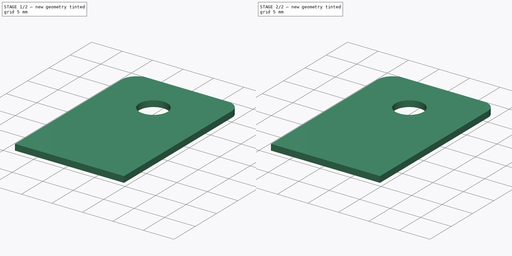
[diagram: build sequence overview — one tinted view per stage of 2, left to right]
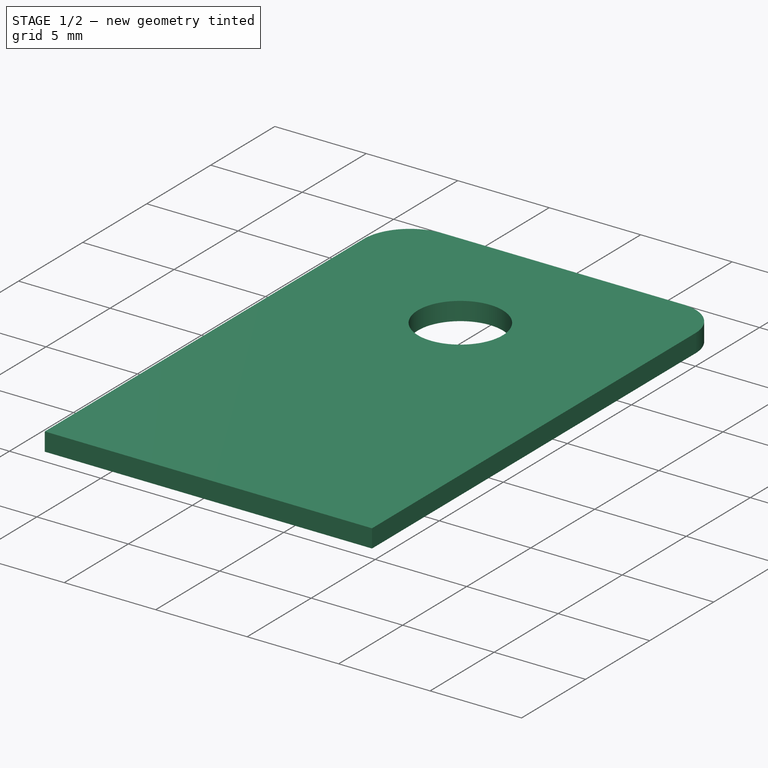
[diagram: stage 1 of 2 — iso view after this stage's code; geometry added in this stage tinted green]
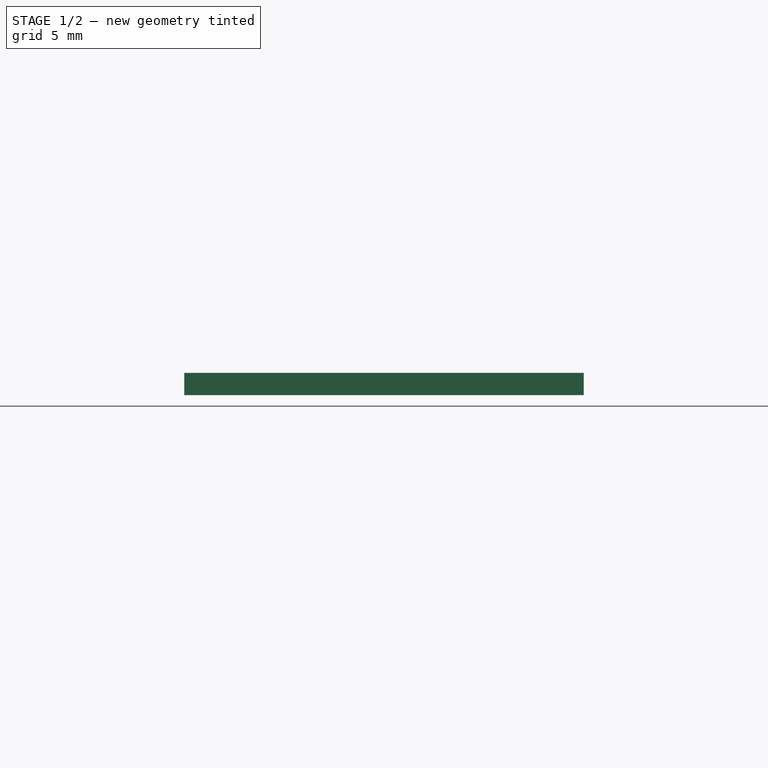
[diagram: stage 1 of 2 — front view after this stage's code; geometry added in this stage tinted green]
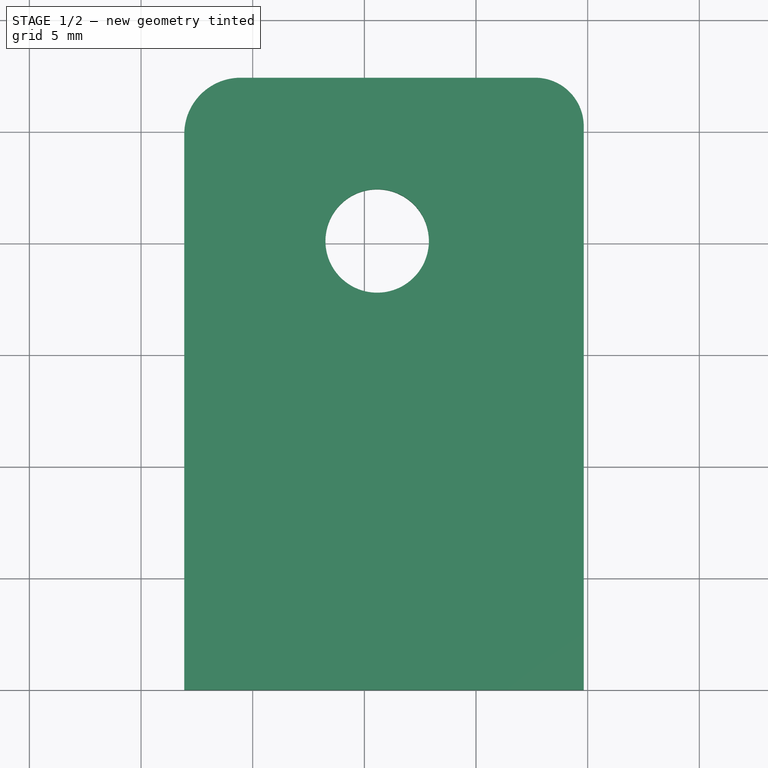
[diagram: stage 1 of 2 — top view after this stage's code; geometry added in this stage tinted green]
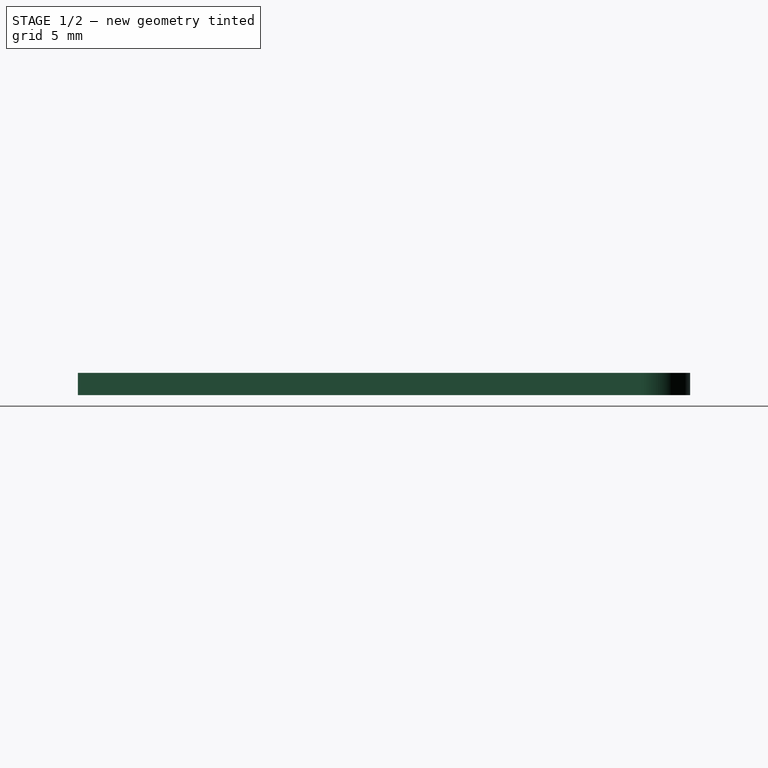
[diagram: stage 1 of 2 — right view after this stage's code; geometry added in this stage tinted green]
FCSTD DOCUMENT  (FreeCAD 0.19R24291 (Git))
Label: union_rueda_loca
License: All rights reserved
LicenseURL: http://en.wikipedia.org/wiki/All_rights_reserved
objects: Sketcher::SketchObject×4, PartDesign::Pad×4, PartDesign::Body×4, App::LinkGroup×4, TechDraw::DrawProjGroupItem×3, Part::Feature×1, TechDraw::DrawSVGTemplate×1, TechDraw::DrawProjGroup×1, TechDraw::DrawPage×1
note: 17 computed .brp shape members not serialized (recipe doc carries the construction recipe); baked Part::Feature solids carry a one-line shape summary decoded from their .brp

FEATURE [PartDesign::Body] Body001  label="arriba"
  Group = -> [Sketch001,Pad001]
  Origin = -> Origin001
  Placement = pos=(0,0,0) rot=(1,0,0;1.5708rad)
  Tip = -> Pad001
FEATURE [App::LinkGroup] LinkGroup  label="escuadra_final_1"
  ElementList = -> [Body001,Body]
  LinkMode = 0
  Placement = pos=(-22.1496,25.8437,27.0599) rot=(0.999448,-0.012618,-0.030741;3.17954rad)
FEATURE [Sketcher::SketchObject] Sketch002
  FullyConstrained = false
  MapMode = 5
  Support = -> [XY_Plane002]
  sketch-geometry (7):
    g0: LineSegment StartX=-8.06452 StartY=0 StartZ=0 EndX=9.82406 EndY=0 EndZ=0
    g1: LineSegment StartX=9.82406 StartY=0 StartZ=0 EndX=9.82406 EndY=25.2473 EndZ=0
    g2: LineSegment StartX=7.652 StartY=27.4194 StartZ=0 EndX=-5.53469 EndY=27.4194 EndZ=0
    g3: LineSegment StartX=-8.06452 StartY=24.8895 StartZ=0 EndX=-8.06452 EndY=0 EndZ=0
    g4: ArcOfCircle CenterX=-5.53469 CenterY=24.8895 CenterZ=0 NormalX=0 NormalY=0 NormalZ=1 AngleXU=0 Radius=2.52983 StartAngle=1.5708 EndAngle=3.14159
    g5: ArcOfCircle CenterX=7.652 CenterY=25.2473 CenterZ=0 NormalX=0 NormalY=0 NormalZ=1 AngleXU=0 Radius=2.17205 StartAngle=0 EndAngle=1.5708
    g6: Circle CenterX=0.573308 CenterY=20.1084 CenterZ=0 NormalX=0 NormalY=0 NormalZ=1 AngleXU=0 Radius=2.31699
  constraints (11):
    c: Coincident(g0,g1)
    c: Coincident(g3,g0)
    c: Horizontal(g0)
    c: Horizontal(g2)
    c: Vertical(g1)
    c: Vertical(g3)
    c: PointOnObject(g0,g-1)
    c: Tangent(g2,g4) = -1.5708
    c: Tangent(g3,g4) = -1.5708
    c: Tangent(g1,g5) = -1.5708
    c: Tangent(g2,g5) = -1.5708
FEATURE [PartDesign::Pad] Pad002
  Direction = (1,1,1)
  Length = 1
  Length2 = 100
  Profile = -> Sketch002
  Type = 0
FEATURE [PartDesign::Body] Body002  label="abajo001"
  Group = -> [Sketch002,Pad002]
  Origin = -> Origin002
  Tip = -> Pad002
FEATURE [Sketcher::SketchObject] Sketch003
  FullyConstrained = false
  MapMode = 5
  Support = -> [XY_Plane003]
  sketch-geometry (7):
    g0: LineSegment StartX=-8.06452 StartY=0 StartZ=0 EndX=9.82406 EndY=0 EndZ=0
    g1: LineSegment StartX=9.82406 StartY=0 StartZ=0 EndX=9.82406 EndY=25.2473 EndZ=0
    g2: LineSegment StartX=7.652 StartY=27.4194 StartZ=0 EndX=-5.53469 EndY=27.4194 EndZ=0
    g3: LineSegment StartX=-8.06452 StartY=24.8895 StartZ=0 EndX=-8.06452 EndY=0 EndZ=0
    g4: ArcOfCircle CenterX=-5.53469 CenterY=24.8895 CenterZ=0 NormalX=0 NormalY=0 NormalZ=1 AngleXU=0 Radius=2.52983 StartAngle=1.5708 EndAngle=3.14159
    g5: ArcOfCircle CenterX=7.652 CenterY=25.2473 CenterZ=0 NormalX=0 NormalY=0 NormalZ=1 AngleXU=0 Radius=2.17205 StartAngle=0 EndAngle=1.5708
    g6: Circle CenterX=0.573308 CenterY=20.1084 CenterZ=0 NormalX=0 NormalY=0 NormalZ=1 AngleXU=0 Radius=2.31699
  constraints (11):
    c: Coincident(g0,g1)
    c: Coincident(g3,g0)
    c: Horizontal(g0)
    c: Horizontal(g2)
    c: Vertical(g1)
    c: Vertical(g3)
    c: PointOnObject(g0,g-1)
    c: Tangent(g2,g4) = -1.5708
    c: Tangent(g3,g4) = -1.5708
    c: Tangent(g1,g5) = -1.5708
    c: Tangent(g2,g5) = -1.5708
FEATURE [PartDesign::Pad] Pad003
  Direction = (1,1,1)
  Length = 1
  Length2 = 100
  Profile = -> Sketch003
  Type = 0
FEATURE [PartDesign::Body] Body003  label="arriba001"
  Group = -> [Sketch003,Pad003]
  Origin = -> Origin003
  Placement = pos=(0,0,0) rot=(1,0,0;1.5708rad)
  Tip = -> Pad003
FEATURE [Part::Feature] Feature  label="Caster Ball Wheel001"
  Placement = pos=(-28.9438,-10.7904,28.5332) rot=(0.249523,0.103356,0.962838;3.9177rad)
  shape: bbox 29.7 x 30.78 x 34.21 mm, 46 faces, 2 solids (baked)
FEATURE [App::LinkGroup] LinkGroup001  label=" escuadra_final_2"
  ElementList = -> [Body003,Body002]
  LinkMode = 0
  Placement = pos=(-23.204,29.4444,-13.1959) rot=(0.58402,0.513758,-0.628469;0.04805rad)
FEATURE [App::LinkGroup] LinkGroup002  label="base_rueda_loca"
  ElementList = -> [LinkGroup,LinkGroup001]
  LinkMode = 0
  Placement = pos=(-11.6611,30.1889,-27.6626) rot=(-0.532107,0.439789,0.723497;3.09707rad)
FEATURE [App::LinkGroup] LinkGroup003  label="union_final"
  ElementList = -> [Feature,LinkGroup002]
  LinkMode = 0
FEATURE [TechDraw::DrawSVGTemplate] Template
  EditableTexts = Designed_by_Name=Designed by Name; Drawing_number=Drawing number; FC-Date=Date; FC-SC=Scale; FC-SH=Sheet; FC-Title=Base rueda loca; Subtitle=Subtitle; Weight=Weight
  Height = 210
  Orientation = 1
  Width = 297
FEATURE [TechDraw::DrawProjGroupItem] ProjItem  label="Front"
  CoarseView = false
  Direction = (0.434,0.297,0.851)
  Focus = 100
  HardHidden = false
  IsoCount = 0
  IsoHidden = false
  IsoVisible = false
  LockPosition = true
  Perspective = false
  Rotation = 0
  RotationVector = (-0.712,0.692,0.122)
  Scale = 0.75
  ScaleType = 2
  SeamHidden = false
  SeamVisible = true
  SmoothHidden = false
  SmoothVisible = true
  Type = 0
  X = 0
  XDirection = (-0.712,0.692,0.122)
  XSource = -> [LinkGroup003]
  Y = 0
FEATURE [TechDraw::DrawProjGroupItem] ProjItem001  label="Left"
  CoarseView = false
  Direction = (0.7119,-0.69166,-0.12167)
  Focus = 100
  HardHidden = false
  IsoCount = 0
  IsoHidden = false
  IsoVisible = false
  LockPosition = false
  Perspective = false
  Rotation = 0
  RotationVector = (1,0,0)
  Scale = 0.75
  ScaleType = 2
  SeamHidden = false
  SeamVisible = true
  SmoothHidden = false
  SmoothVisible = true
  Type = 1
  X = 48.7027
  XDirection = (0.433834,0.296886,0.850674)
  XSource = -> [LinkGroup003]
  Y = 0
FEATURE [TechDraw::DrawProjGroupItem] ProjItem002  label="Top"
  CoarseView = false
  Direction = (-0.552255,-0.65838,0.511419)
  Focus = 100
  HardHidden = false
  IsoCount = 0
  IsoHidden = false
  IsoVisible = false
  LockPosition = false
  Perspective = false
  Rotation = 0
  RotationVector = (1,0,0)
  Scale = 0.75
  ScaleType = 2
  SeamHidden = false
  SeamVisible = true
  SmoothHidden = false
  SmoothVisible = true
  Type = 4
  X = 0
  XDirection = (-0.7119,0.69166,0.12167)
  XSource = -> [LinkGroup003]
  Y = -108.274
FEATURE [TechDraw::DrawProjGroup] ProjGroup
  Anchor = -> ProjItem
  AutoDistribute = true
  LockPosition = false
  ProjectionType = 0
  Rotation = 0
  Scale = 0.75
  ScaleType = 1
  Views = -> [ProjItem,ProjItem001,ProjItem002]
  X = 90.1043
  XSource = -> [LinkGroup003]
  Y = 154.973
  spacingX = 15
  spacingY = 15
FEATURE [TechDraw::DrawPage] Page
  KeepUpdated = true
  NextBalloonIndex = 1
  ProjectionType = 0
  Template = -> Template
  Views = -> [ProjGroup]
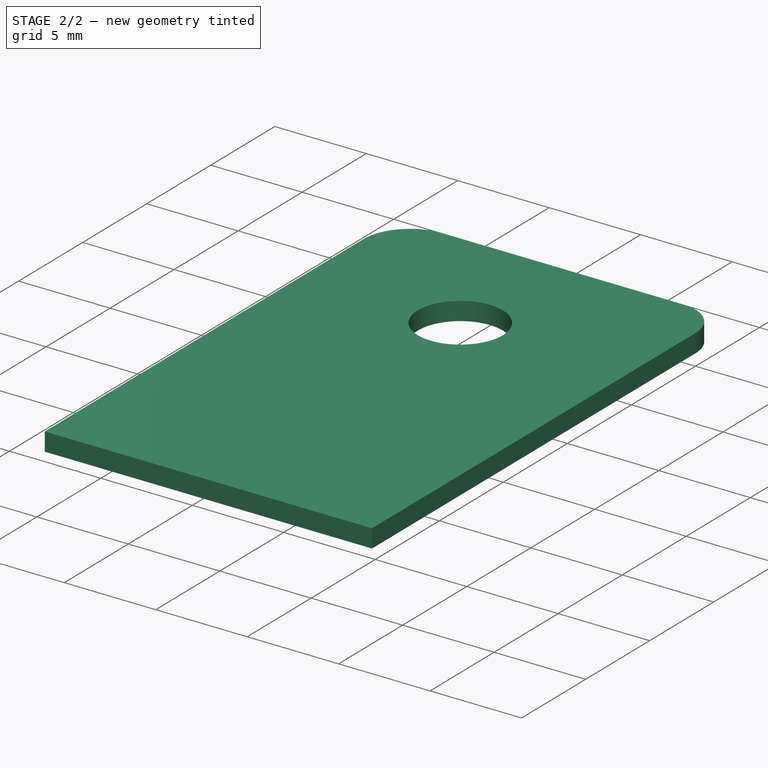
[diagram: stage 2 of 2 — iso view after this stage's code; geometry added in this stage tinted green]
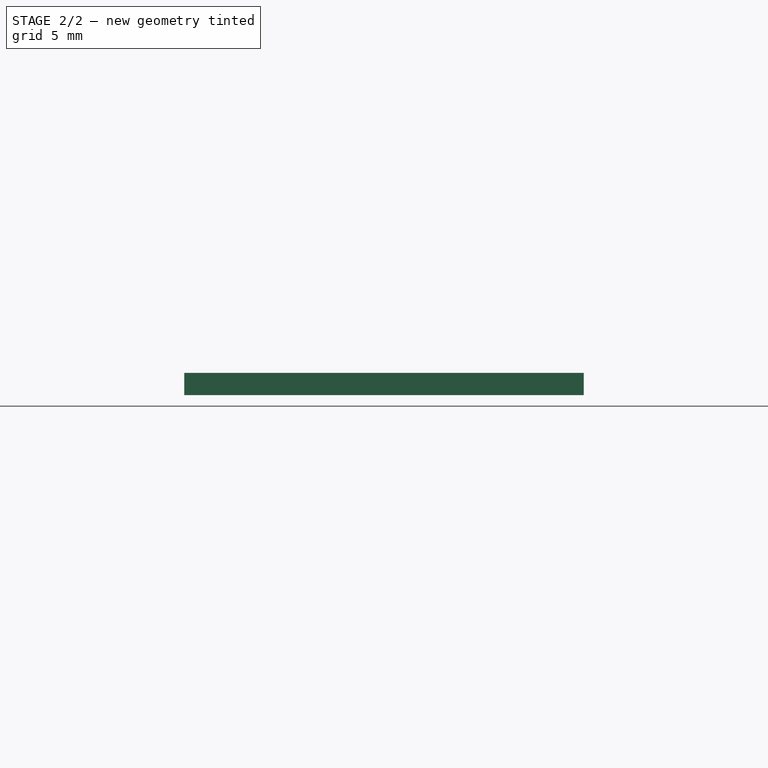
[diagram: stage 2 of 2 — front view after this stage's code; geometry added in this stage tinted green]
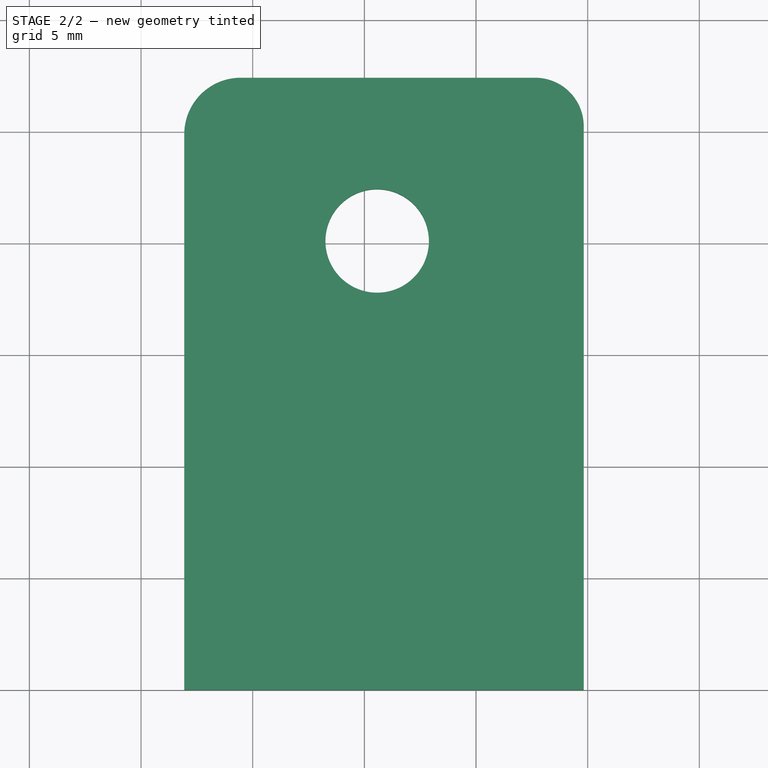
[diagram: stage 2 of 2 — top view after this stage's code; geometry added in this stage tinted green]
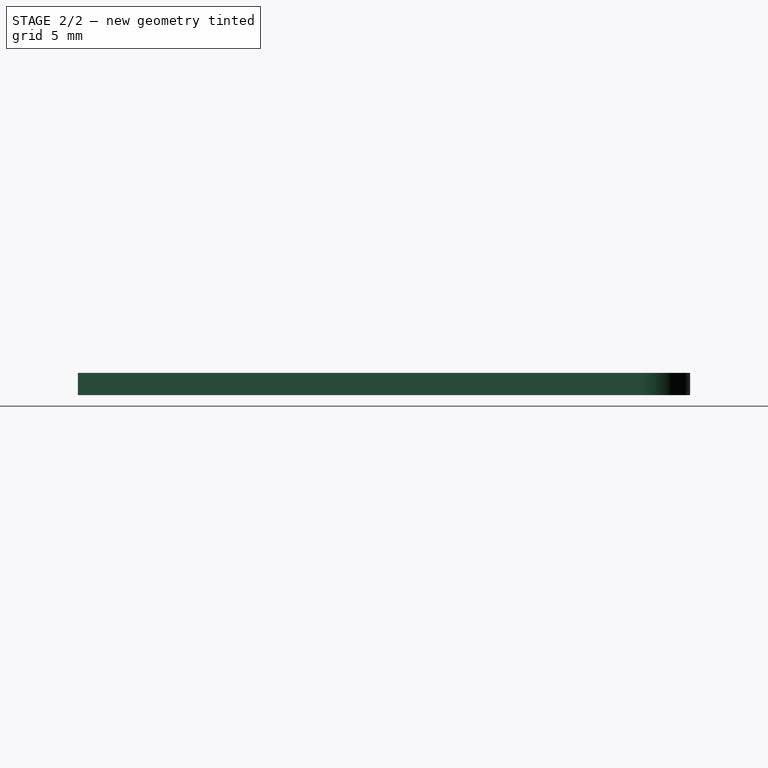
[diagram: stage 2 of 2 — right view after this stage's code; geometry added in this stage tinted green]
FEATURE [Sketcher::SketchObject] Sketch
  FullyConstrained = false
  MapMode = 5
  Support = -> [XY_Plane]
  sketch-geometry (7):
    g0: LineSegment StartX=-8.06452 StartY=0 StartZ=0 EndX=9.82406 EndY=0 EndZ=0
    g1: LineSegment StartX=9.82406 StartY=0 StartZ=0 EndX=9.82406 EndY=25.2473 EndZ=0
    g2: LineSegment StartX=7.652 StartY=27.4194 StartZ=0 EndX=-5.53469 EndY=27.4194 EndZ=0
    g3: LineSegment StartX=-8.06452 StartY=24.8895 StartZ=0 EndX=-8.06452 EndY=0 EndZ=0
    g4: ArcOfCircle CenterX=-5.53469 CenterY=24.8895 CenterZ=0 NormalX=0 NormalY=0 NormalZ=1 AngleXU=0 Radius=2.52983 StartAngle=1.5708 EndAngle=3.14159
    g5: ArcOfCircle CenterX=7.652 CenterY=25.2473 CenterZ=0 NormalX=0 NormalY=0 NormalZ=1 AngleXU=0 Radius=2.17205 StartAngle=0 EndAngle=1.5708
    g6: Circle CenterX=0.573308 CenterY=20.1084 CenterZ=0 NormalX=0 NormalY=0 NormalZ=1 AngleXU=0 Radius=2.31699
  constraints (11):
    c: Coincident(g0,g1)
    c: Coincident(g3,g0)
    c: Horizontal(g0)
    c: Horizontal(g2)
    c: Vertical(g1)
    c: Vertical(g3)
    c: PointOnObject(g0,g-1)
    c: Tangent(g2,g4) = -1.5708
    c: Tangent(g3,g4) = -1.5708
    c: Tangent(g1,g5) = -1.5708
    c: Tangent(g2,g5) = -1.5708
FEATURE [PartDesign::Pad] Pad
  Direction = (1,1,1)
  Length = 1
  Length2 = 100
  Profile = -> Sketch
  Type = 0
FEATURE [PartDesign::Body] Body  label="abajo"
  Group = -> [Sketch,Pad]
  Origin = -> Origin
  Tip = -> Pad
FEATURE [Sketcher::SketchObject] Sketch001
  FullyConstrained = false
  MapMode = 5
  Support = -> [XY_Plane001]
  sketch-geometry (7):
    g0: LineSegment StartX=-8.06452 StartY=0 StartZ=0 EndX=9.82406 EndY=0 EndZ=0
    g1: LineSegment StartX=9.82406 StartY=0 StartZ=0 EndX=9.82406 EndY=25.2473 EndZ=0
    g2: LineSegment StartX=7.652 StartY=27.4194 StartZ=0 EndX=-5.53469 EndY=27.4194 EndZ=0
    g3: LineSegment StartX=-8.06452 StartY=24.8895 StartZ=0 EndX=-8.06452 EndY=0 EndZ=0
    g4: ArcOfCircle CenterX=-5.53469 CenterY=24.8895 CenterZ=0 NormalX=0 NormalY=0 NormalZ=1 AngleXU=0 Radius=2.52983 StartAngle=1.5708 EndAngle=3.14159
    g5: ArcOfCircle CenterX=7.652 CenterY=25.2473 CenterZ=0 NormalX=0 NormalY=0 NormalZ=1 AngleXU=0 Radius=2.17205 StartAngle=0 EndAngle=1.5708
    g6: Circle CenterX=0.573308 CenterY=20.1084 CenterZ=0 NormalX=0 NormalY=0 NormalZ=1 AngleXU=0 Radius=2.31699
  constraints (11):
    c: Coincident(g0,g1)
    c: Coincident(g3,g0)
    c: Horizontal(g0)
    c: Horizontal(g2)
    c: Vertical(g1)
    c: Vertical(g3)
    c: PointOnObject(g0,g-1)
    c: Tangent(g2,g4) = -1.5708
    c: Tangent(g3,g4) = -1.5708
    c: Tangent(g1,g5) = -1.5708
    c: Tangent(g2,g5) = -1.5708
FEATURE [PartDesign::Pad] Pad001
  Direction = (1,1,1)
  Length = 1
  Length2 = 100
  Profile = -> Sketch001
  Type = 0
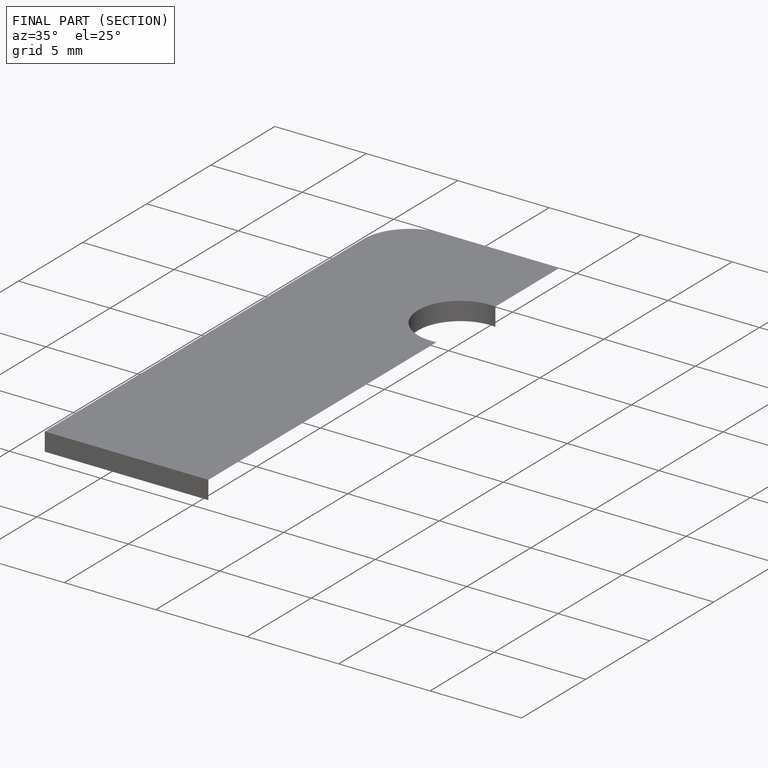
[diagram: finished part — half-section view (interior)]
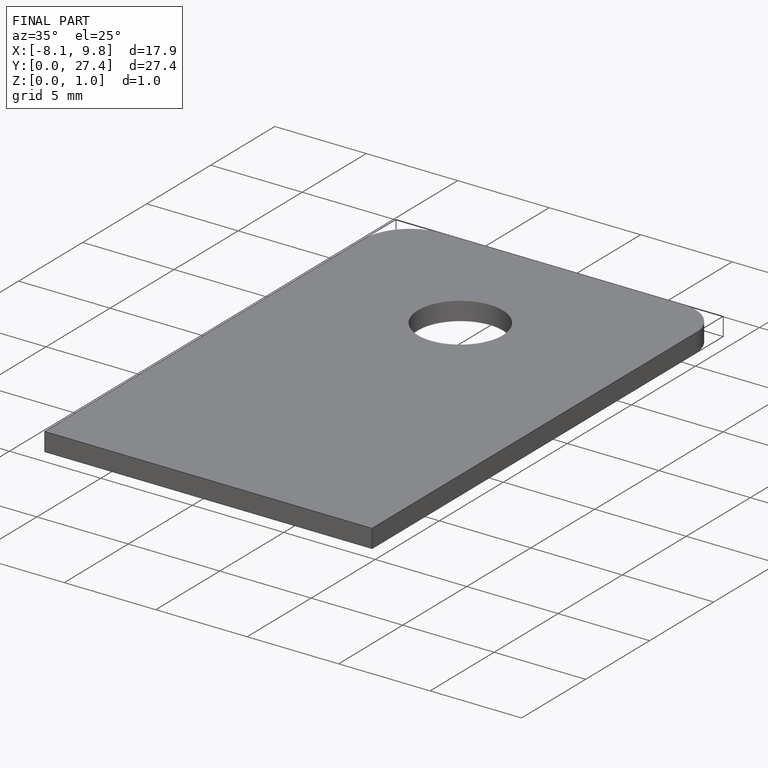
[diagram: finished part — iso view with bounding-box wireframe]
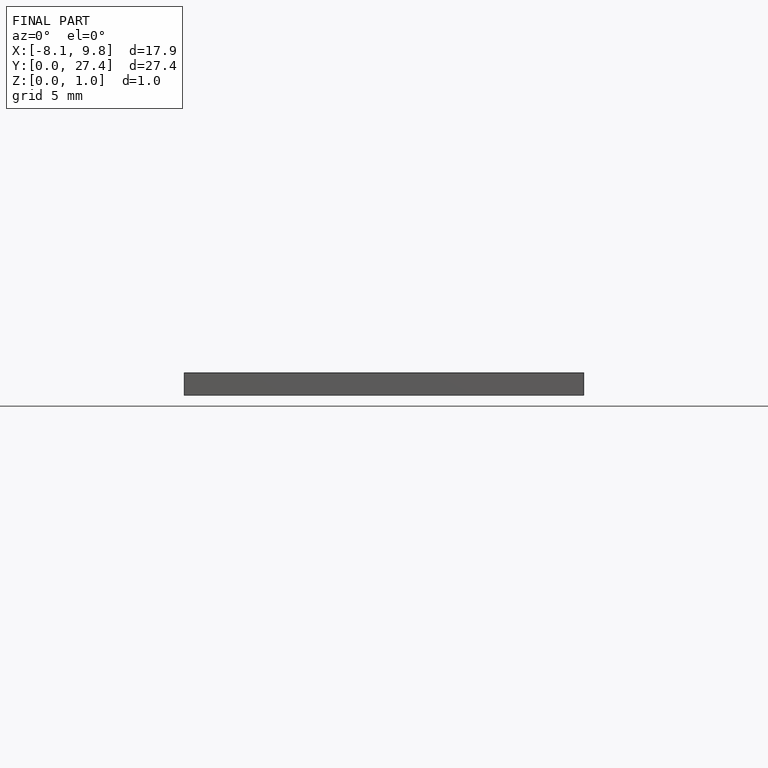
[diagram: finished part — front view with bounding-box wireframe]
